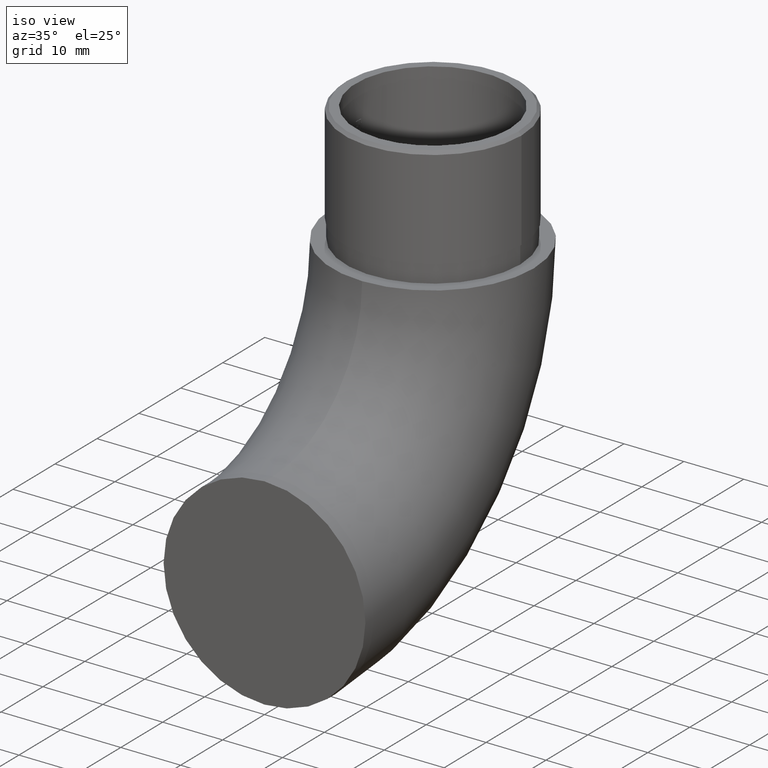
[diagram: clean part render]
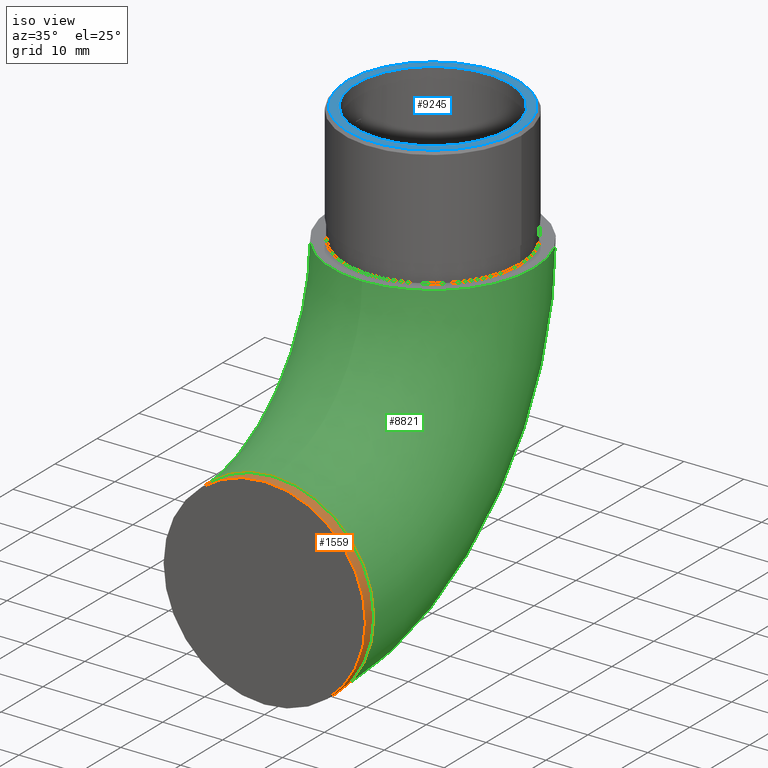
[diagram: same view with three faces highlighted in distinct colors, each labeled with its STEP entity id]
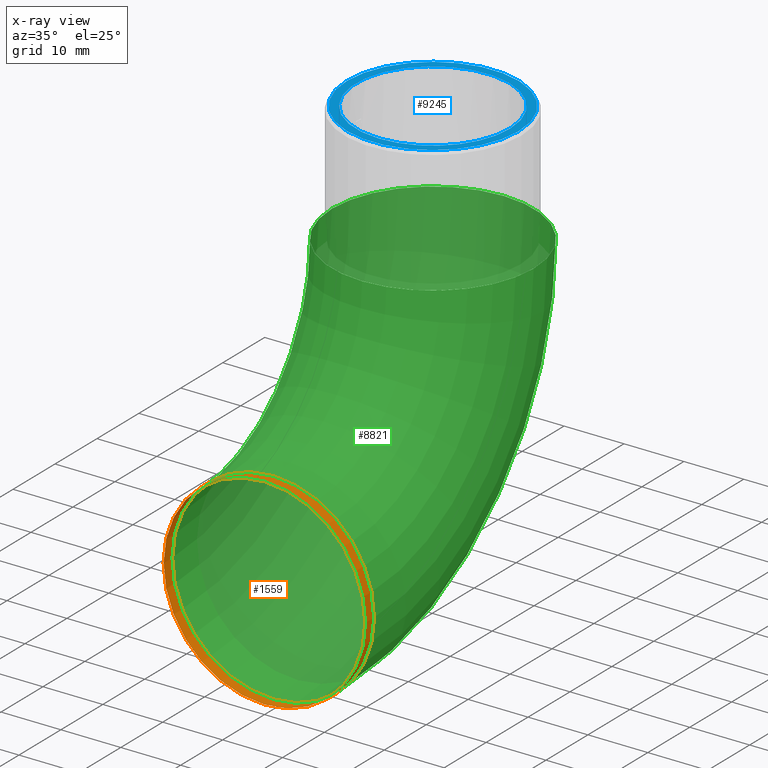
[diagram: x-ray of the same camera — body ghosted, the three highlighted faces saturated]
A machine part, iso view with three faces highlighted in distinct colors.
The next image is the same camera in x-ray (body ghosted, the three faces saturated) — at least one of them is partly hidden behind the body in this view.
Their STEP definitions:

[orange] entity #1559 — the highlighted cylindrical surface (bore or boss wall) has radius 16.85 mm, axis along (-0, -1, -0).
#456 = ORIENTED_EDGE ( 'NONE', *, *, #4306, .F. ) ;
#715 = FACE_OUTER_BOUND ( 'NONE', #2231, .T. ) ;
#1001 = DIRECTION ( 'NONE',  ( 0.0000000000000000000, 0.0000000000000000000, -1.000000000000000000 ) ) ;
#1559 = ADVANCED_FACE ( 'NONE', ( #9717, #715 ), #8017, .T. ) ;
#1682 = EDGE_LOOP ( 'NONE', ( #456 ) ) ;
#1806 = DIRECTION ( 'NONE',  ( 0.0000000000000000000, 1.000000000000000000, 0.0000000000000000000 ) ) ;
#2231 = EDGE_LOOP ( 'NONE', ( #11261 ) ) ;
#3467 = VERTEX_POINT ( 'NONE', #10778 ) ;
#4126 = CIRCLE ( 'NONE', #10754, 16.85000000000000100 ) ;
#4306 = EDGE_CURVE ( 'NONE', #3467, #3467, #4126, .T. ) ;
#4687 = CARTESIAN_POINT ( 'NONE',  ( 0.0000000000000000000, 0.0000000000000000000, 0.0000000000000000000 ) ) ;
#4858 = DIRECTION ( 'NONE',  ( 0.0000000000000000000, 0.0000000000000000000, 1.000000000000000000 ) ) ;
#6255 = EDGE_CURVE ( 'NONE', #10726, #10726, #11229, .T. ) ;
#7429 = AXIS2_PLACEMENT_3D ( 'NONE', #9159, #9286, #1001 ) ;
#7668 = CARTESIAN_POINT ( 'NONE',  ( 0.0000000000000000000, 2.000000000000000000, 0.0000000000000000000 ) ) ;
#8017 = CYLINDRICAL_SURFACE ( 'NONE', #7429, 16.85000000000000100 ) ;
#9159 = CARTESIAN_POINT ( 'NONE',  ( 0.0000000000000000000, 2.000000000000000000, 0.0000000000000000000 ) ) ;
#9281 = AXIS2_PLACEMENT_3D ( 'NONE', #4687, #1806, #10069 ) ;
#9286 = DIRECTION ( 'NONE',  ( -0.0000000000000000000, -1.000000000000000000, -0.0000000000000000000 ) ) ;
#9717 = FACE_OUTER_BOUND ( 'NONE', #1682, .T. ) ;
#9921 = CARTESIAN_POINT ( 'NONE',  ( 0.0000000000000000000, 0.0000000000000000000, 16.85000000000000100 ) ) ;
#10069 = DIRECTION ( 'NONE',  ( 0.0000000000000000000, 0.0000000000000000000, 1.000000000000000000 ) ) ;
#10323 = DIRECTION ( 'NONE',  ( 0.0000000000000000000, 1.000000000000000000, 0.0000000000000000000 ) ) ;
#10726 = VERTEX_POINT ( 'NONE', #9921 ) ;
#10754 = AXIS2_PLACEMENT_3D ( 'NONE', #7668, #10323, #4858 ) ;
#10778 = CARTESIAN_POINT ( 'NONE',  ( 0.0000000000000000000, 2.000000000000000000, 16.85000000000000100 ) ) ;
#11229 = CIRCLE ( 'NONE', #9281, 16.85000000000000100 ) ;
#11261 = ORIENTED_EDGE ( 'NONE', *, *, #6255, .T. ) ;

[blue] entity #9245 — the highlighted planar face has unit normal (0, 0, 1).
#298 = CIRCLE ( 'NONE', #4569, 14.29999999999996500 ) ;
#502 = AXIS2_PLACEMENT_3D ( 'NONE', #9137, #4526, #3498 ) ;
#1223 = EDGE_CURVE ( 'NONE', #9886, #9886, #8032, .T. ) ;
#2133 = ORIENTED_EDGE ( 'NONE', *, *, #2396, .T. ) ;
#2296 = DIRECTION ( 'NONE',  ( 0.0000000000000000000, 0.0000000000000000000, 1.000000000000000000 ) ) ;
#2333 = VERTEX_POINT ( 'NONE', #2595 ) ;
#2396 = EDGE_CURVE ( 'NONE', #2333, #2333, #298, .T. ) ;
#2454 = ORIENTED_EDGE ( 'NONE', *, *, #1223, .F. ) ;
#2595 = CARTESIAN_POINT ( 'NONE',  ( 14.29999999999996500, 40.14999999999999900, 58.14999999999999900 ) ) ;
#3126 = AXIS2_PLACEMENT_3D ( 'NONE', #7510, #8440, #8363 ) ;
#3325 = CARTESIAN_POINT ( 'NONE',  ( 0.0000000000000000000, 40.14999999999999900, 58.14999999999999900 ) ) ;
#3498 = DIRECTION ( 'NONE',  ( 1.000000000000000000, 0.0000000000000000000, -0.0000000000000000000 ) ) ;
#4526 = DIRECTION ( 'NONE',  ( 0.0000000000000000000, 0.0000000000000000000, 1.000000000000000000 ) ) ;
#4569 = AXIS2_PLACEMENT_3D ( 'NONE', #3325, #2296, #11523 ) ;
#4812 = EDGE_LOOP ( 'NONE', ( #2133 ) ) ;
#5343 = EDGE_LOOP ( 'NONE', ( #2454 ) ) ;
#7072 = CARTESIAN_POINT ( 'NONE',  ( 12.85000000000000000, 40.14999999999999900, 58.14999999999999900 ) ) ;
#7384 = FACE_OUTER_BOUND ( 'NONE', #4812, .T. ) ;
#7510 = CARTESIAN_POINT ( 'NONE',  ( 0.0000000000000000000, 40.14999999999999900, 58.14999999999999900 ) ) ;
#8032 = CIRCLE ( 'NONE', #3126, 12.85000000000000000 ) ;
#8363 = DIRECTION ( 'NONE',  ( 1.000000000000000000, 0.0000000000000000000, 0.0000000000000000000 ) ) ;
#8440 = DIRECTION ( 'NONE',  ( 0.0000000000000000000, 0.0000000000000000000, 1.000000000000000000 ) ) ;
#9093 = PLANE ( 'NONE',  #502 ) ;
#9137 = CARTESIAN_POINT ( 'NONE',  ( 0.0000000000000000000, 40.14999999999999900, 58.14999999999999900 ) ) ;
#9245 = ADVANCED_FACE ( 'NONE', ( #7384, #9650 ), #9093, .T. ) ;
#9650 = FACE_BOUND ( 'NONE', #5343, .T. ) ;
#9886 = VERTEX_POINT ( 'NONE', #7072 ) ;
#11523 = DIRECTION ( 'NONE',  ( 1.000000000000000000, 0.0000000000000000000, 0.0000000000000000000 ) ) ;

[green] entity #8821 — the highlighted toroidal blend (fillet) surface has major radius 38.15 mm and minor (blend) radius 16.85 mm.
#8 = DIRECTION ( 'NONE',  ( 0.0000000000000000000, -1.608122649676636600E-016, 1.000000000000000000 ) ) ;
#53 = DIRECTION ( 'NONE',  ( 0.0000000000000000000, -1.000000000000000000, 0.0000000000000000000 ) ) ;
#1305 = AXIS2_PLACEMENT_3D ( 'NONE', #1828, #8, #53 ) ;
#1609 = VERTEX_POINT ( 'NONE', #10658 ) ;
#1828 = CARTESIAN_POINT ( 'NONE',  ( 0.0000000000000000000, 40.14999999999999900, 38.15000000000000600 ) ) ;
#3467 = VERTEX_POINT ( 'NONE', #10778 ) ;
#4099 = CIRCLE ( 'NONE', #1305, 16.85000000000000100 ) ;
#4126 = CIRCLE ( 'NONE', #10754, 16.85000000000000100 ) ;
#4130 = EDGE_LOOP ( 'NONE', ( #6135 ) ) ;
#4306 = EDGE_CURVE ( 'NONE', #3467, #3467, #4126, .T. ) ;
#4771 = AXIS2_PLACEMENT_3D ( 'NONE', #8336, #8205, #9107 ) ;
#4786 = FACE_OUTER_BOUND ( 'NONE', #4130, .T. ) ;
#4858 = DIRECTION ( 'NONE',  ( 0.0000000000000000000, 0.0000000000000000000, 1.000000000000000000 ) ) ;
#6135 = ORIENTED_EDGE ( 'NONE', *, *, #4306, .T. ) ;
#6642 = EDGE_CURVE ( 'NONE', #1609, #1609, #4099, .T. ) ;
#7092 = TOROIDAL_SURFACE ( 'NONE', #4771, 38.14999999999999900, 16.85000000000000100 ) ;
#7668 = CARTESIAN_POINT ( 'NONE',  ( 0.0000000000000000000, 2.000000000000000000, 0.0000000000000000000 ) ) ;
#8205 = DIRECTION ( 'NONE',  ( 1.000000000000000000, 0.0000000000000000000, 0.0000000000000000000 ) ) ;
#8336 = CARTESIAN_POINT ( 'NONE',  ( 0.0000000000000000000, 2.000000000000000000, 38.14999999999999900 ) ) ;
#8821 = ADVANCED_FACE ( 'NONE', ( #4786, #11628 ), #7092, .T. ) ;
#9107 = DIRECTION ( 'NONE',  ( 0.0000000000000000000, 0.0000000000000000000, -1.000000000000000000 ) ) ;
#9184 = ORIENTED_EDGE ( 'NONE', *, *, #6642, .F. ) ;
#10323 = DIRECTION ( 'NONE',  ( 0.0000000000000000000, 1.000000000000000000, 0.0000000000000000000 ) ) ;
#10658 = CARTESIAN_POINT ( 'NONE',  ( 0.0000000000000000000, 23.29999999999999700, 38.15000000000000600 ) ) ;
#10746 = EDGE_LOOP ( 'NONE', ( #9184 ) ) ;
#10754 = AXIS2_PLACEMENT_3D ( 'NONE', #7668, #10323, #4858 ) ;
#10778 = CARTESIAN_POINT ( 'NONE',  ( 0.0000000000000000000, 2.000000000000000000, 16.85000000000000100 ) ) ;
#11628 = FACE_OUTER_BOUND ( 'NONE', #10746, .T. ) ;